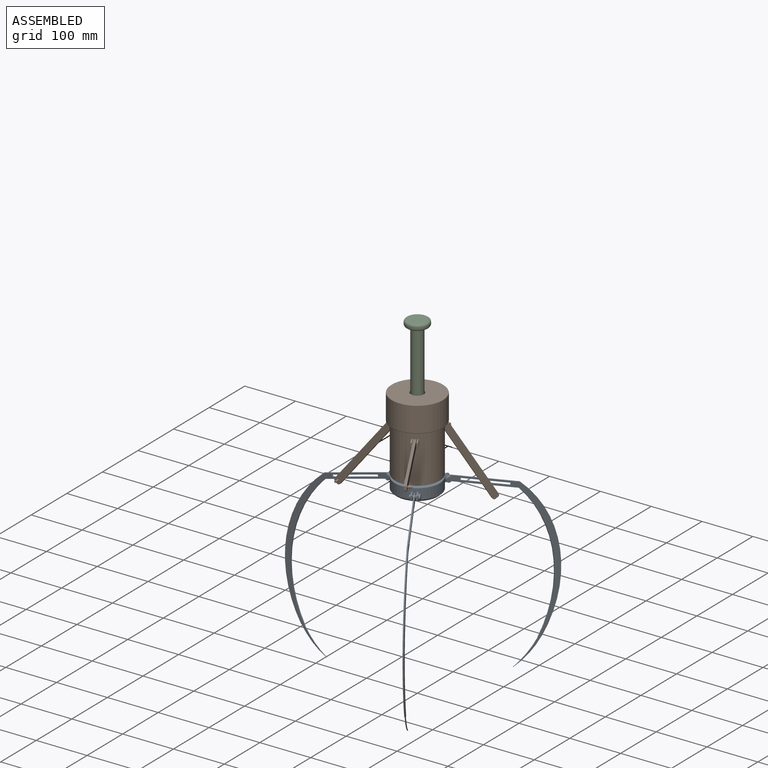
[diagram: assembled view]
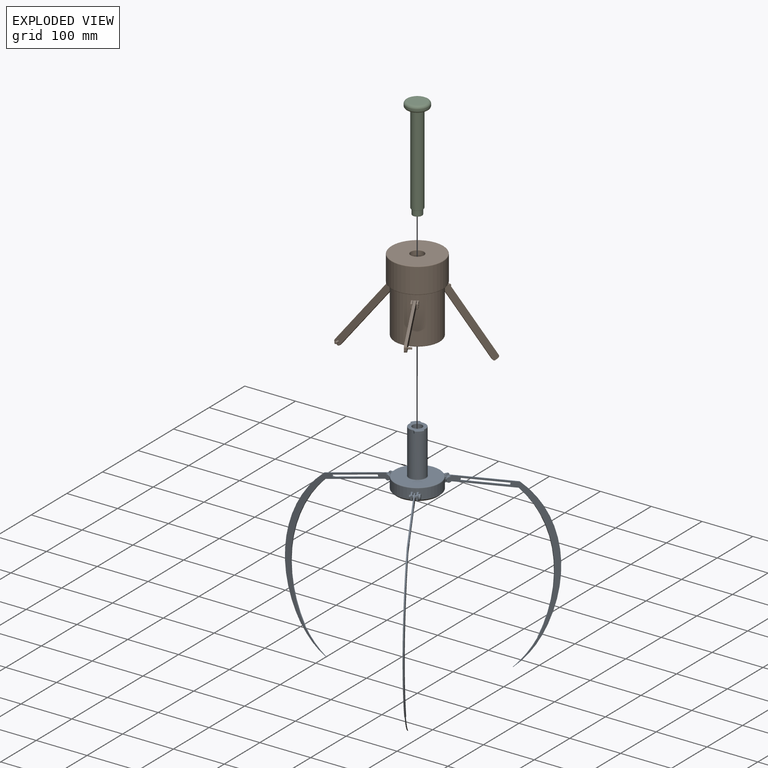
[diagram: exploded view]
GUIDED TOUR — MATED ASSEMBLY WITH SUBASSEMBLIES (Onshape document 1697e7c4b68ad2f61e49e5d9, AutoMate assembly 1697e7c4b68ad2f61e49e5d9_fa7799d7f39c444295d4dd53_c29609ae4eb9703df183e290_default)

This assembly has 15 component occurrences arranged in 3 top-level units: 1 individual components plus 2 subassemblies (S0, S1). The tour has two levels: first the top level, where each subassembly is treated as one rigid unit; then each subassembly is toured internally in its own section (nesting deeper than one subassembly level is flattened into its subassembly's section).

Components are labeled P0..P14 across the whole record; subassembly units are labeled S0..S1. A mate is a constraint between two units; its type names the relative motion it leaves free:
  FASTENED — locks the two components together rigidly (no relative motion),
  REVOLUTE — leaves rotation about the listed axis free (a hinge),
  SLIDER — leaves translation along the listed axis free.
Axis/direction vectors are unit vectors and 'through' points are millimeter coordinates, both in the assembly's world frame.

TOP-LEVEL MATES (between units; each subassembly's internal mates are listed in its own section)
  1. FASTENED "Fastened 1": P11 <-> S0, direction (0.000, 0.000, -1.000) through (0.00, 0.00, -21.27) mm
  2. SLIDER "Slider 1": S0 <-> S1, axis (0.000, 0.000, -1.000) through (0.00, 0.00, -53.98) mm

TOP-LEVEL ASSEMBLY ORDER
  1. S0 — the base component [order heuristic]
  2. S1 — core [order heuristic]
  3. P11 [order verified]
(P11 verified with a relaxed clearance tolerance: the source model stores slight part interference there.)
Order-tag legend:
  [order verified] — this step's position reverses a verified removal order: the component was checked to insert without passing through the ones already placed.
  [order heuristic] — the first 2 components form the assembly's core: parts whose collision-free extraction could not be verified, listed in mate-graph order.

Of the 15 component occurrences, 1 carries the full construction recipe — the FeatureScript program that regenerates the part's solid from scratch; the rest are supplied as boundary geometry only. Each toured unit is shown spotlighted twice — assembled, then exploded with a leader line back to its socket (green = recipe-attached component, orange = geometry-only, blue = subassembly unit; the rest desaturated gray).
NOTE — document 2 of 2 of this assembly tour. The two overview renders and the header above are repeated from document 1; the component sections below continue where the previous document stopped.
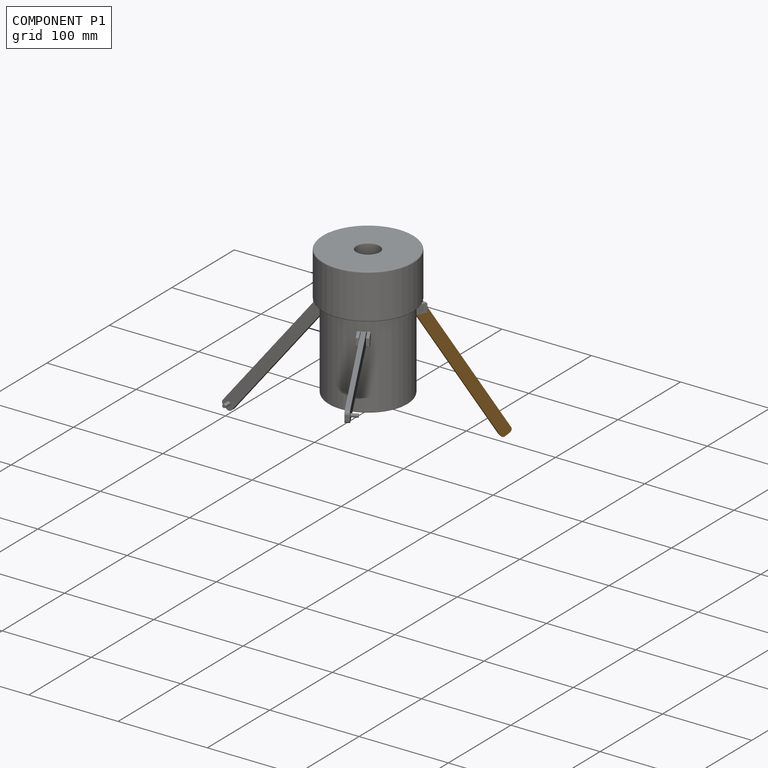
[diagram: component P1 — assembled]
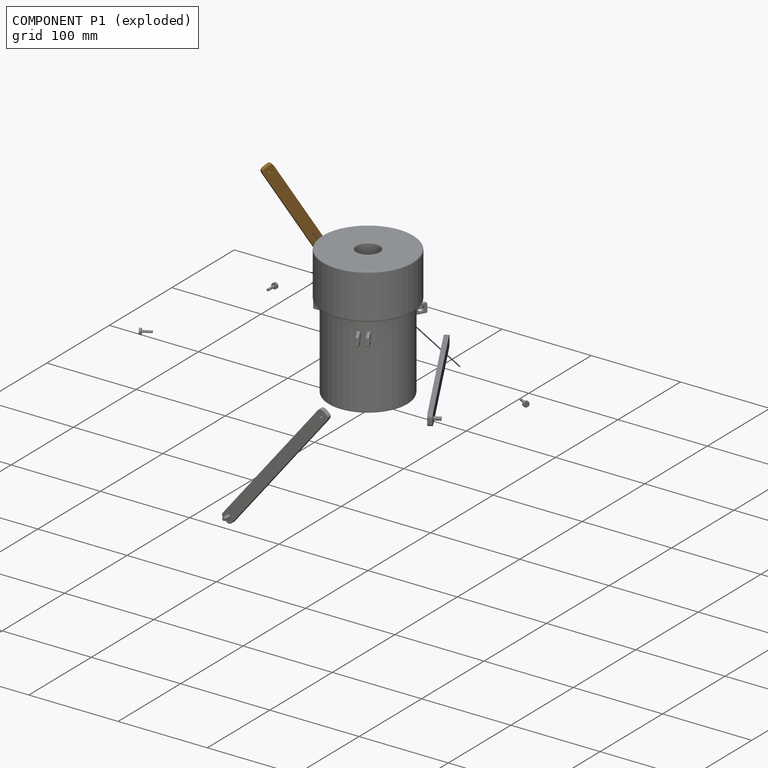
[diagram: component P1 — exploded]
COMPONENT P1 — geometry summary (no construction recipe available for this part):
  bounding box: 177.8 x 12.7 x 12.7 mm
  B-rep topology: 1 solid, 13 faces, 60 edges
  volume: 11469 mm^3 (40% of its bounding box)
  symmetry: mirror-symmetric across its z mid-plane
Held by: REVOLUTE mate "Arm2" to P10; REVOLUTE mate "Arm2" to P10.
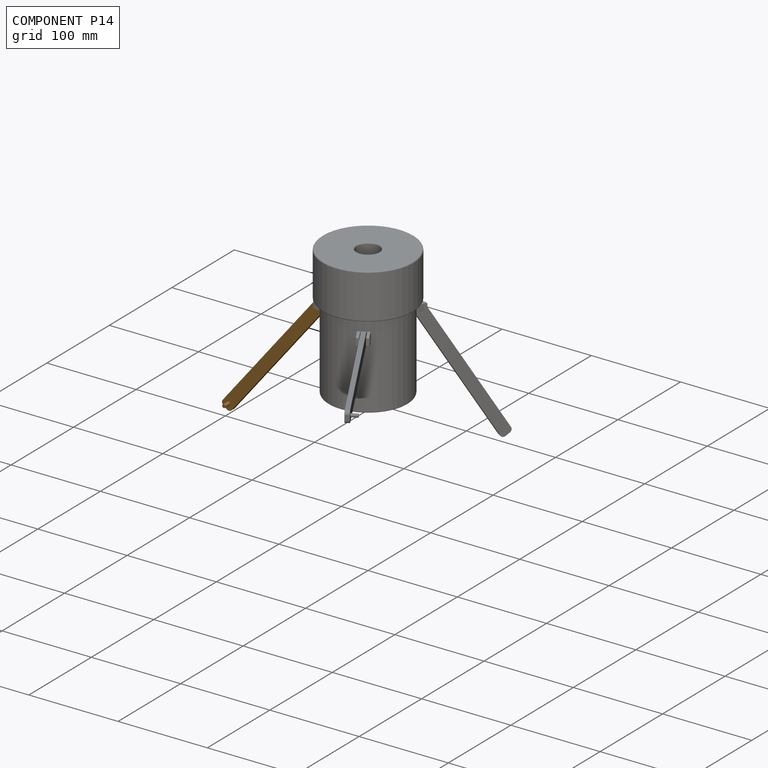
[diagram: component P14 — assembled]
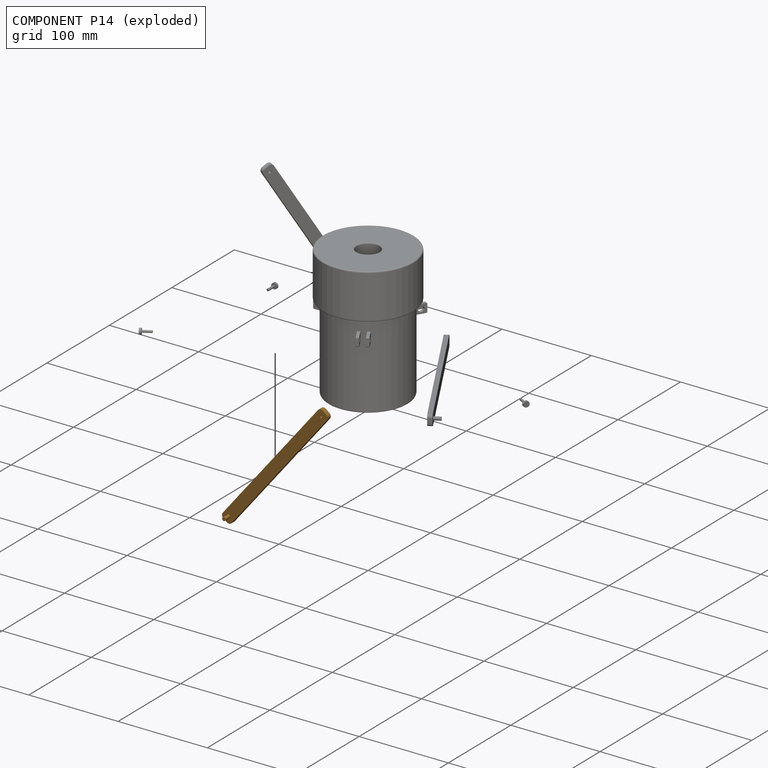
[diagram: component P14 — exploded]
COMPONENT P14 — geometry summary (no construction recipe available for this part):
  bounding box: 177.8 x 12.7 x 12.7 mm
  B-rep topology: 1 solid, 13 faces, 60 edges
  volume: 11469 mm^3 (40% of its bounding box)
  symmetry: mirror-symmetric across its z mid-plane
Held by: REVOLUTE mate "Arm3" to P10; REVOLUTE mate "Arm3" to P10.
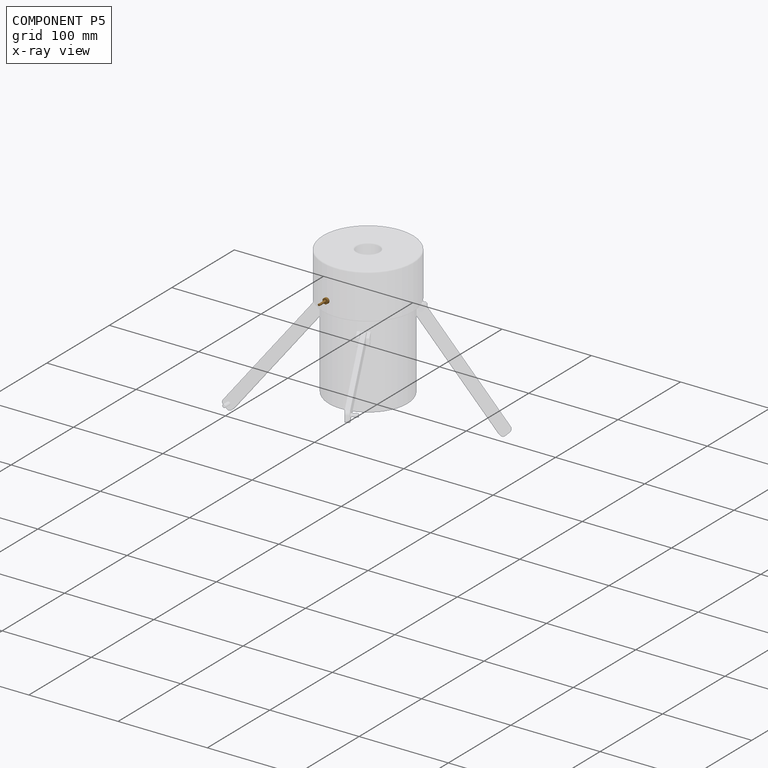
[diagram: component P5 — x-ray view]
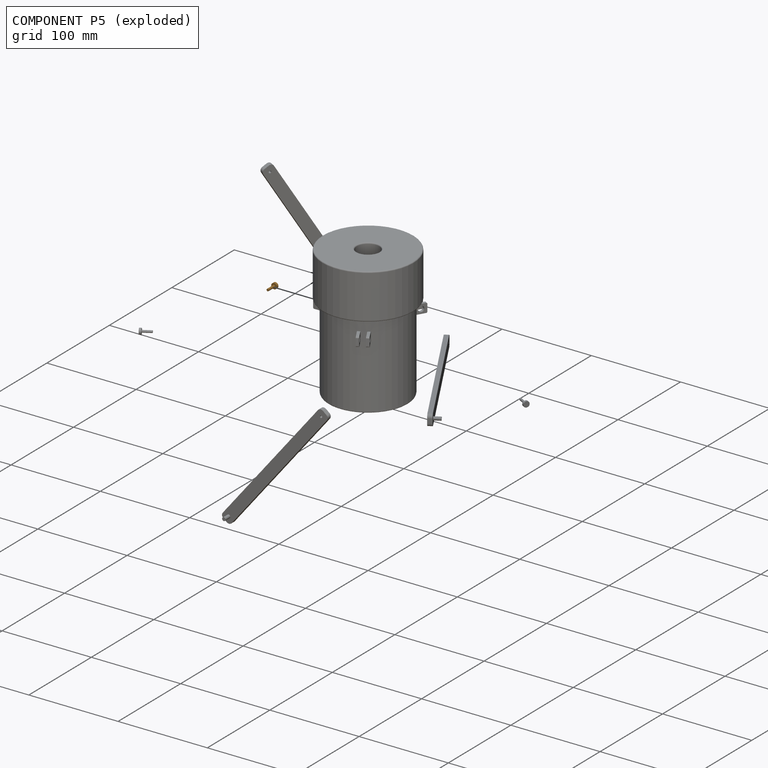
[diagram: component P5 — exploded]
COMPONENT P5 — geometry summary (no construction recipe available for this part):
  bounding box: 12.7 x 6.4 x 6.4 mm
  B-rep topology: 1 solid, 5 faces, 12 edges
  volume: 132 mm^3 (26% of its bounding box)
  symmetry: revolution-symmetric about the x axis through its bounding-box center; mirror-symmetric across its y mid-plane, z mid-plane
Held by: FASTENED mate "Pin3" to P10; FASTENED mate "Pin3" to P10.
PROVENANCE & LICENSES
Assembly (occurrences, transforms, mates, per-part STEP geometry): AutoMate dataset, Zenodo record 7776208, CC0.
Construction recipes: CADFS (HuggingFace VladPyatov/CADFS, CC-BY-4.0, layered over the ABC dataset), FeatureScript reconstruction programs keyed by ABC model id.
Join: ABC meta listings map ABC model id -> Onshape documentId; within a shared document, parts are matched by geometric signature (bounding-box dims + volume at 0.1% relative tolerance, exact B-rep face/solid counts).
Verification: 1 of this assembly's 15 components carries a recipe attachment, and every attachment is mesh-verified: the CADFS STEP and the AutoMate member STEP were compared as meshes in their shared local frame (symmetric sampled-point-to-mesh distance); worst across the 1 attachment: below the mesh-comparison resolution (tessellation chordal tolerance ~0.317 mm) on a 211 mm part.
Renders: orthographic iso camera (az 35 / el 25); the floor grid conveys scale (grid pitch printed in each image; no ruler). In the exploded view each component is displaced by its stored offset vector: the offsets alone carry the explosion direction (mate normal/axis signs are not orientation cues and do not encode it), and separation distances are assigned per mate-chain, not proportionally to assembly-order depth.
